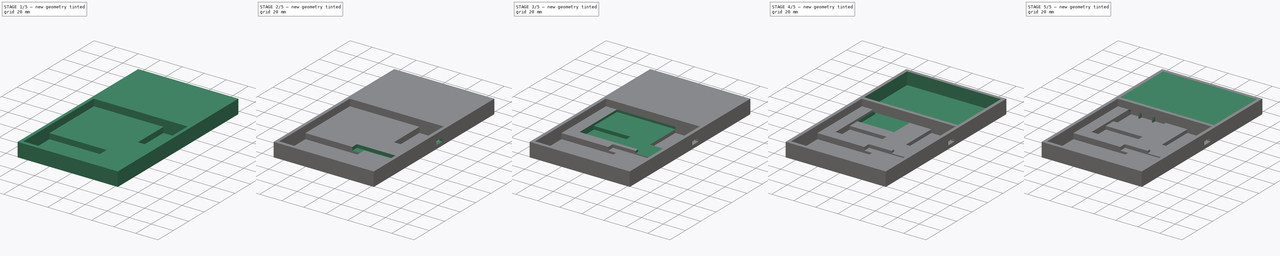
[diagram: build sequence overview — one tinted view per stage of 5, left to right]
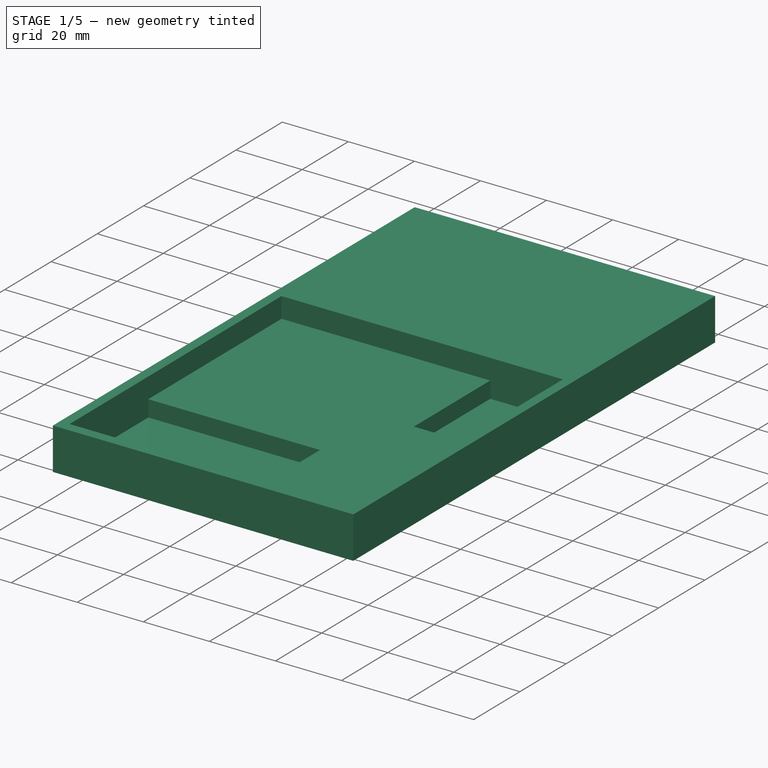
[diagram: stage 1 of 5 — iso view after this stage's code; geometry added in this stage tinted green]
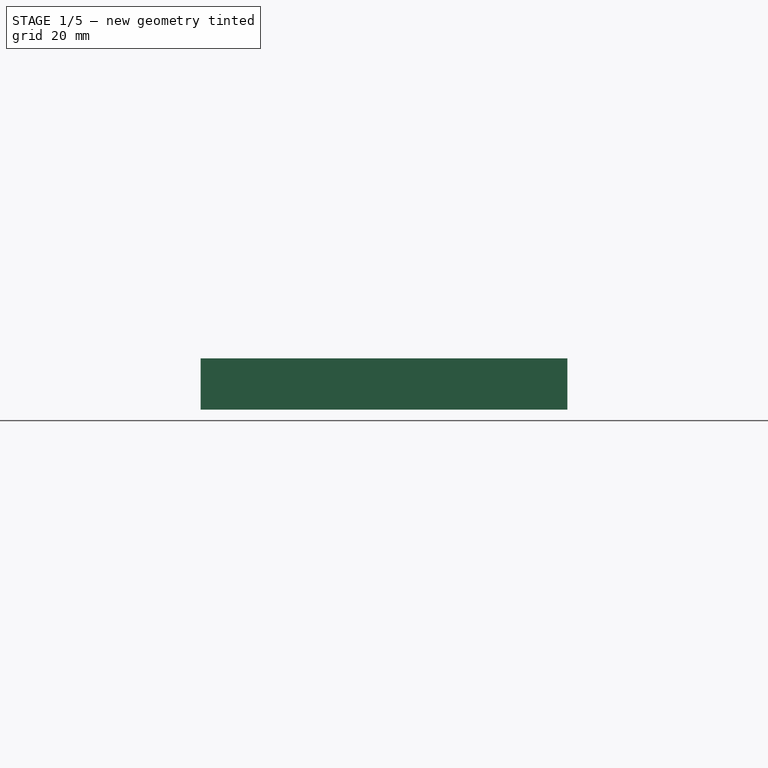
[diagram: stage 1 of 5 — front view after this stage's code; geometry added in this stage tinted green]
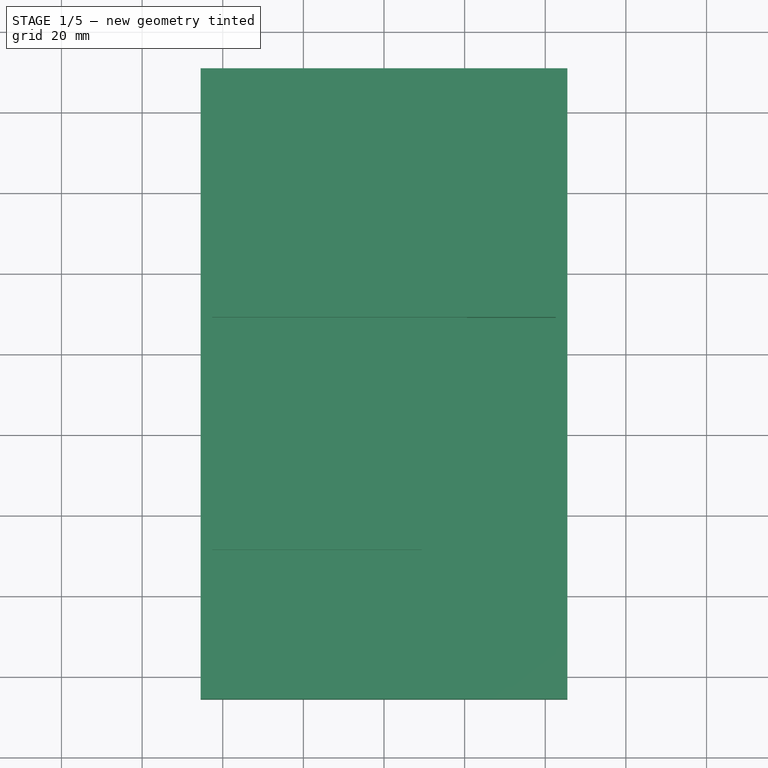
[diagram: stage 1 of 5 — top view after this stage's code; geometry added in this stage tinted green]
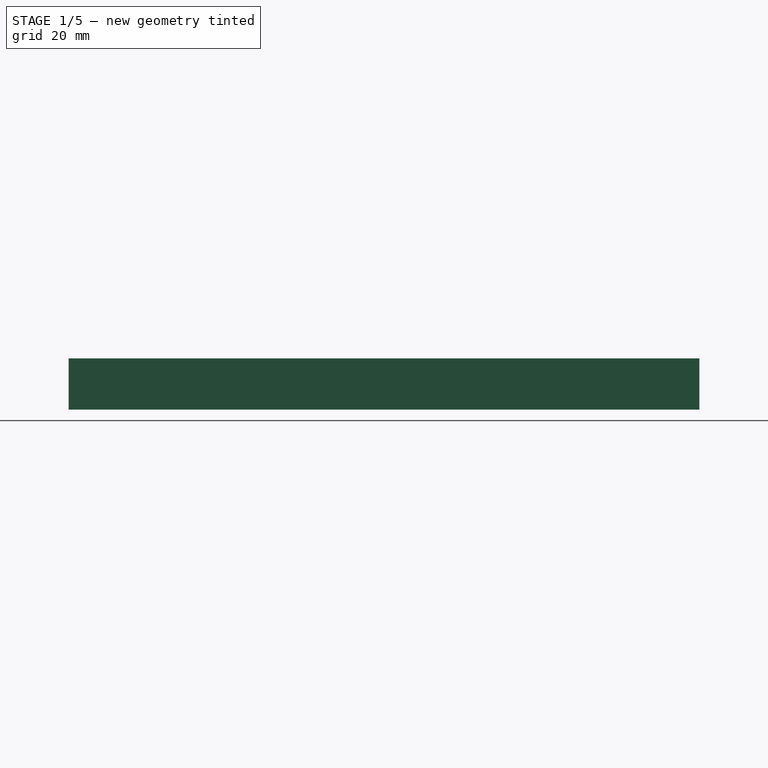
[diagram: stage 1 of 5 — right view after this stage's code; geometry added in this stage tinted green]
FCSTD DOCUMENT  (FreeCAD 0.20R29603 (Git))
Label: newCalcCase1
License: All rights reserved
LicenseURL: http://en.wikipedia.org/wiki/All_rights_reserved
objects: Sketcher::SketchObject×17, PartDesign::Pocket×14, PartDesign::Pad×4, PartDesign::Body×2, Spreadsheet::Sheet×1
note: 55 computed .brp shape members not serialized (recipe doc carries the construction recipe); baked Part::Feature solids carry a one-line shape summary decoded from their .brp

FEATURE [PartDesign::Body] Body  label="Screen"
  Group = -> [Sketch,Pad]
  Origin = -> Origin
  Tip = -> Pad
FEATURE [Spreadsheet::Sheet] Spreadsheet
  cells = A1=screenW; B1(screenW)==85.2mm; A2=screenH; B2(screenH)==55.7mm; A3=caseW; B3(caseW)==90.95999999999999mm; A4=caseH; B4(caseH)==156.45mm; A5=batW; B5(batW)==34mm; A6=batH; B6(batH)==52mm; A7=cBoostW; B7(cBoostW)==22mm; A8=cBoostH; B8(cBoostH)==33mm; A9=cBoostD; B9(cBoostD)==1.67mm; A10=arduinoW; B10(arduinoW)=18.4; A11=arduinoH; B11(arduinoH)==33.4mm; A12=arduinoD; B12(arduinoD)==3mm
FEATURE [Sketcher::SketchObject] Sketch001
  FullyConstrained = true
  MapMode = 5
  Support = -> [XY_Plane001]
  expr: Constraints[10] = Spreadsheet.caseW / 2
  expr: Constraints[11] = Spreadsheet.screenH / 2mm + 3
  expr: Constraints[8] = Spreadsheet.caseW
  expr: Constraints[9] = Spreadsheet.caseH
  sketch-geometry (4):
    g0: LineSegment StartX=-45.48 StartY=30.85 StartZ=0 EndX=45.48 EndY=30.85 EndZ=0
    g1: LineSegment StartX=45.48 StartY=30.85 StartZ=0 EndX=45.48 EndY=-125.6 EndZ=0
    g2: LineSegment StartX=45.48 StartY=-125.6 StartZ=0 EndX=-45.48 EndY=-125.6 EndZ=0
    g3: LineSegment StartX=-45.48 StartY=-125.6 StartZ=0 EndX=-45.48 EndY=30.85 EndZ=0
  constraints (12):
    c: Coincident(g0,g1)
    c: Coincident(g1,g2)
    c: Coincident(g2,g3)
    c: Coincident(g3,g0)
    c: Horizontal(g0)
    c: Horizontal(g2)
    c: Vertical(g1)
    c: Vertical(g3)
    c: DistanceX(g0,g0) = 90.96
    c: DistanceY(g1,g1) = 156.45
    c: DistanceX(g-1,g0) = 45.48
    c: DistanceY(g-1,g0) = 30.85
FEATURE [PartDesign::Pad] Pad001
  Direction = (0,0,1)
  Length = 12.7
  Length2 = 10
  Profile = -> Sketch001
  ReferenceAxis = -> Sketch001 [N_Axis]
  Type = 0
FEATURE [Sketcher::SketchObject] Sketch002
  ExternalGeometry = -> [Pad001]
  FullyConstrained = true
  MapMode = 5
  Placement = pos=(0,0,12.7) rot=(0,0,1;0rad)
  Support = -> [Pad001]
  expr: Constraints[10] = Spreadsheet.screenH / 2mm + 3
  expr: Constraints[8] = Spreadsheet.screenW
  expr: Constraints[9] = Spreadsheet.screenW / 2
  sketch-geometry (4):
    g0: LineSegment StartX=-42.6 StartY=-30.85 StartZ=0 EndX=42.6 EndY=-30.85 EndZ=0
    g1: LineSegment StartX=42.6 StartY=-30.85 StartZ=0 EndX=42.6 EndY=-122.485 EndZ=0
    g2: LineSegment StartX=42.6 StartY=-122.485 StartZ=0 EndX=-42.6 EndY=-122.485 EndZ=0
    g3: LineSegment StartX=-42.6 StartY=-122.485 StartZ=0 EndX=-42.6 EndY=-30.85 EndZ=0
  constraints (12):
    c: Coincident(g0,g1)
    c: Coincident(g1,g2)
    c: Coincident(g2,g3)
    c: Coincident(g3,g0)
    c: Horizontal(g0)
    c: Horizontal(g2)
    c: Vertical(g1)
    c: Vertical(g3)
    c: DistanceX(g0,g0) = 85.2
    c: DistanceX(g-1,g0) = 42.6
    c: DistanceY(g0,g-1) = 30.85
    c: Distance(g-3,g2) = 4.24264
FEATURE [PartDesign::Pocket] Pocket
  BaseFeature = -> Pad001
  Direction = (0,0,-1)
  Length = 6.2
  Length2 = 5
  Profile = -> Sketch002
  ReferenceAxis = -> Sketch002 [N_Axis]
  Type = 0
FEATURE [Sketcher::SketchObject] Sketch003
  ExternalGeometry = -> [Pocket]
  FullyConstrained = true
  MapMode = 5
  Placement = pos=(0,0,6.5) rot=(0,0,1;0rad)
  Support = -> [Pocket]
  expr: Constraints[8] = Spreadsheet.batH
  expr: Constraints[9] = Spreadsheet.batW
  sketch-geometry (4):
    g0: LineSegment StartX=-42.6 StartY=-88.4846 StartZ=0 EndX=9.4 EndY=-88.4846 EndZ=0
    g1: LineSegment StartX=9.4 StartY=-88.4846 StartZ=0 EndX=9.4 EndY=-122.485 EndZ=0
    g2: LineSegment StartX=9.4 StartY=-122.485 StartZ=0 EndX=-42.6 EndY=-122.485 EndZ=0
    g3: LineSegment StartX=-42.6 StartY=-122.485 StartZ=0 EndX=-42.6 EndY=-88.4846 EndZ=0
  constraints (11):
    c: Coincident(g0,g1)
    c: Coincident(g1,g2)
    c: Coincident(g2,g3)
    c: Coincident(g3,g0)
    c: Horizontal(g0)
    c: Horizontal(g2)
    c: Vertical(g1)
    c: Vertical(g3)
    c: DistanceX(g0,g0) = 52
    c: DistanceY(g1,g1) = 34
    c: Coincident(g2,g-3)
FEATURE [PartDesign::Pocket] Pocket001
  BaseFeature = -> Pocket
  Direction = (0,0,-1)
  Length = 5
  Length2 = 5
  Profile = -> Sketch003
  ReferenceAxis = -> Sketch003 [N_Axis]
  Type = 0
FEATURE [Sketcher::SketchObject] Sketch004
  ExternalGeometry = -> [Pocket001]
  FullyConstrained = true
  MapMode = 5
  Placement = pos=(0,0,6.5) rot=(0,0,1;0rad)
  Support = -> [Pocket001]
  expr: Constraints[8] = Spreadsheet.cBoostW
  expr: Constraints[9] = Spreadsheet.cBoostH
  sketch-geometry (4):
    g0: LineSegment StartX=20.6 StartY=-30.85 StartZ=0 EndX=42.6 EndY=-30.85 EndZ=0
    g1: LineSegment StartX=42.6 StartY=-30.85 StartZ=0 EndX=42.6 EndY=-63.85 EndZ=0
    g2: LineSegment StartX=42.6 StartY=-63.85 StartZ=0 EndX=20.6 EndY=-63.85 EndZ=0
    g3: LineSegment StartX=20.6 StartY=-63.85 StartZ=0 EndX=20.6 EndY=-30.85 EndZ=0
  constraints (11):
    c: Coincident(g0,g1)
    c: Coincident(g1,g2)
    c: Coincident(g2,g3)
    c: Coincident(g3,g0)
    c: Horizontal(g0)
    c: Horizontal(g2)
    c: Vertical(g1)
    c: Vertical(g3)
    c: DistanceX(g0,g0) = 22
    c: DistanceY(g3,g3) = 33
    c: Coincident(g0,g-3)
FEATURE [PartDesign::Pocket] Pocket002
  BaseFeature = -> Pocket001
  Direction = (0,0,-1)
  Length = 5
  Length2 = 5
  Profile = -> Sketch004
  ReferenceAxis = -> Sketch004 [N_Axis]
  Type = 0
  expr: Length = 5mm
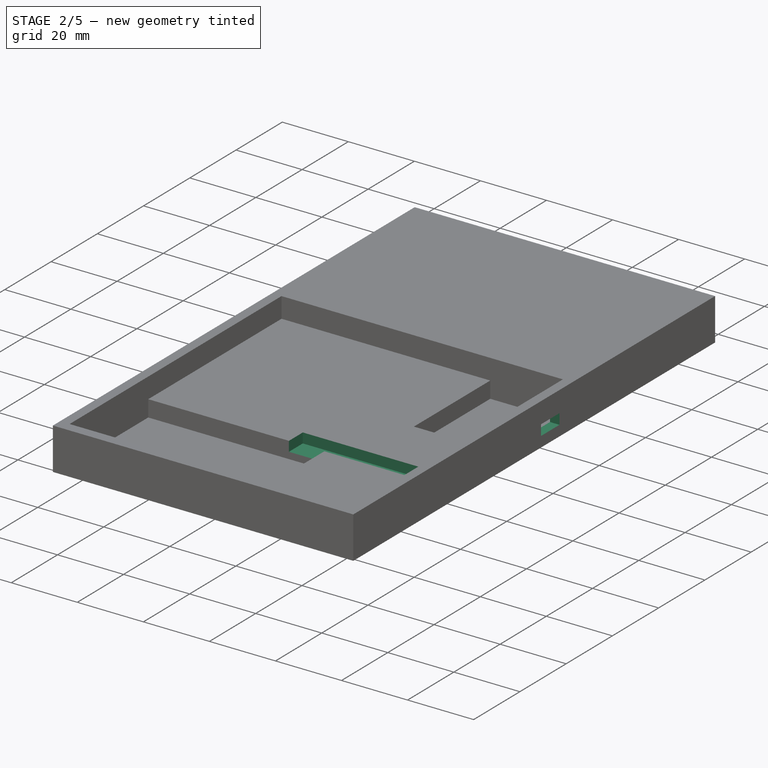
[diagram: stage 2 of 5 — iso view after this stage's code; geometry added in this stage tinted green]
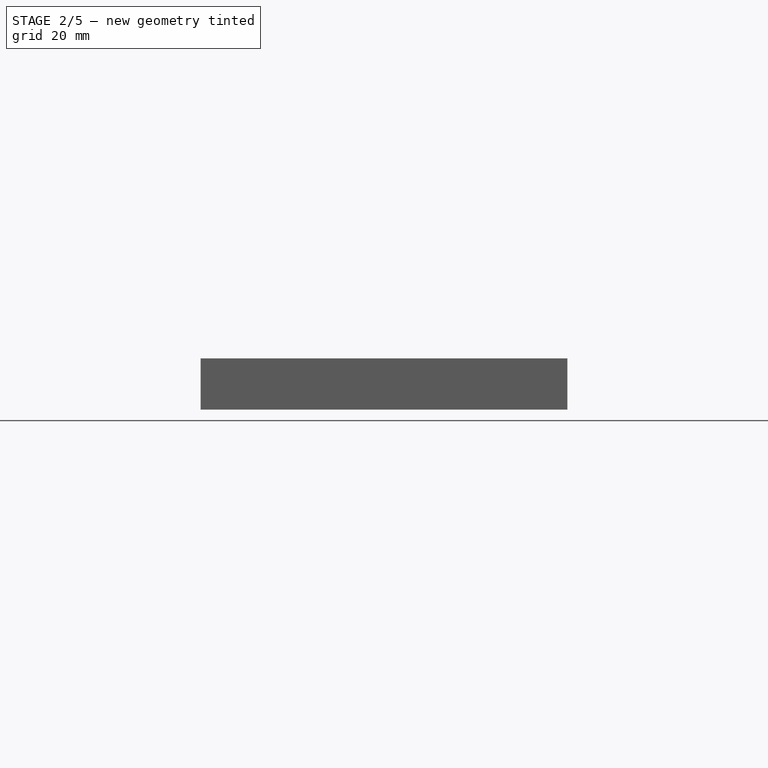
[diagram: stage 2 of 5 — front view after this stage's code; geometry added in this stage tinted green]
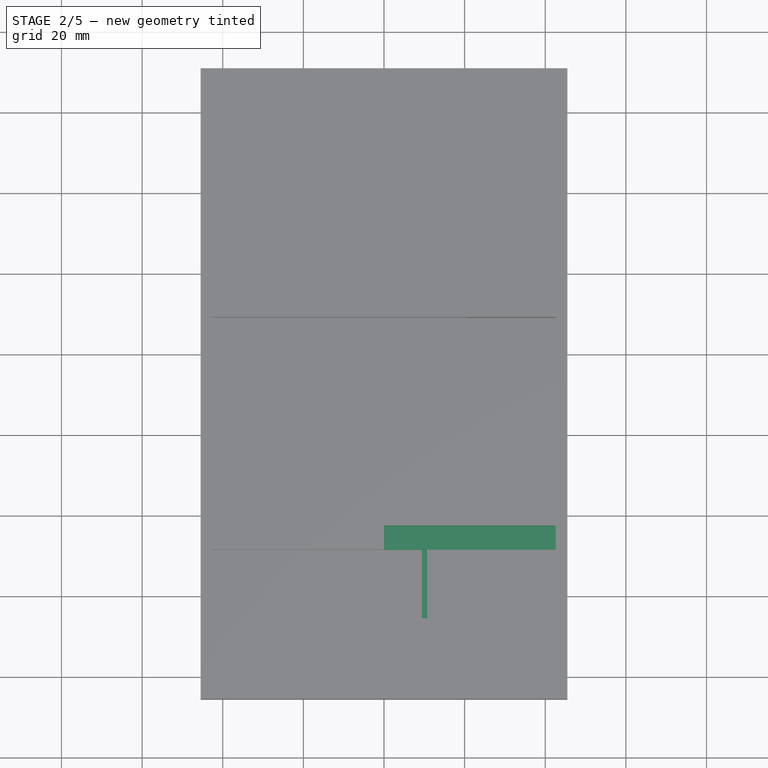
[diagram: stage 2 of 5 — top view after this stage's code; geometry added in this stage tinted green]
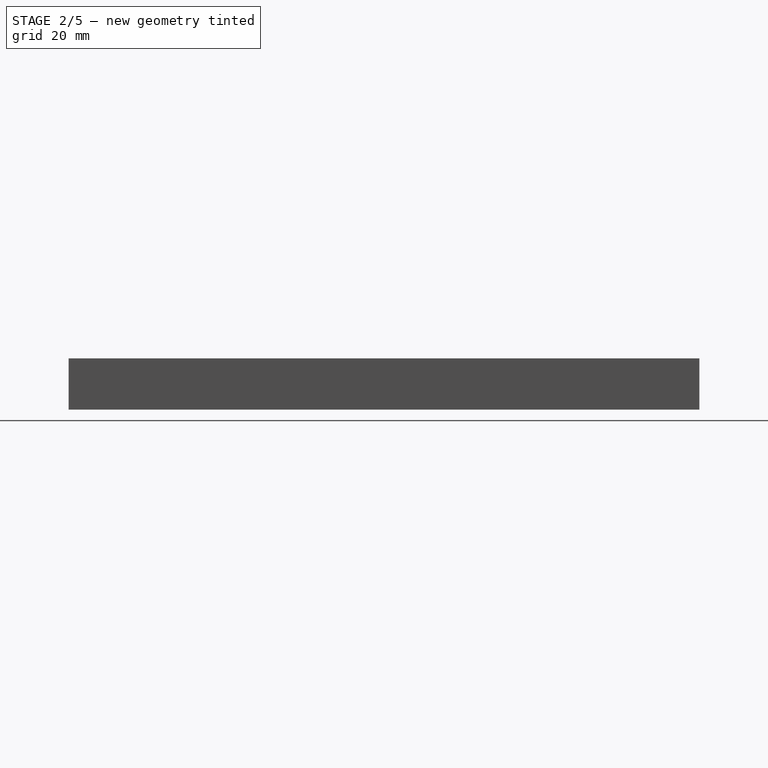
[diagram: stage 2 of 5 — right view after this stage's code; geometry added in this stage tinted green]
FEATURE [Sketcher::SketchObject] Sketch005
  ExternalGeometry = -> [Pocket002]
  FullyConstrained = true
  MapMode = 5
  Placement = pos=(42.6,0,0) rot=(0.57735,-0.57735,-0.57735;2.0944rad)
  Support = -> [Pocket002]
  expr: Constraints[11] = Spreadsheet.cBoostD
  sketch-geometry (4):
    g0: LineSegment StartX=36.45 StartY=6.37 StartZ=0 EndX=44.45 EndY=6.37 EndZ=0
    g1: LineSegment StartX=44.45 StartY=6.37 StartZ=0 EndX=44.45 EndY=3.17 EndZ=0
    g2: LineSegment StartX=44.45 StartY=3.17 StartZ=0 EndX=36.45 EndY=3.17 EndZ=0
    g3: LineSegment StartX=36.45 StartY=3.17 StartZ=0 EndX=36.45 EndY=6.37 EndZ=0
  constraints (12):
    c: Coincident(g0,g1)
    c: Coincident(g1,g2)
    c: Coincident(g2,g3)
    c: Coincident(g3,g0)
    c: Horizontal(g0)
    c: Horizontal(g2)
    c: Vertical(g1)
    c: Vertical(g3)
    c: DistanceX(g-3,g0) = 5.6
    c: DistanceY(g1,g1) = 3.2
    c: DistanceX(g0,g0) = 8
    c: DistanceY(g-4,g2) = 1.67
FEATURE [PartDesign::Pocket] Pocket003
  BaseFeature = -> Pocket002
  Direction = (1,0,0)
  Length = 5
  Length2 = 5
  Profile = -> Sketch005
  ReferenceAxis = -> Sketch005 [N_Axis]
  Type = 2
FEATURE [Sketcher::SketchObject] Sketch006
  ExternalGeometry = -> [Pocket003]
  FullyConstrained = true
  MapMode = 5
  Placement = pos=(9.4,0,0) rot=(0.57735,-0.57735,-0.57735;2.0944rad)
  Support = -> [Pocket003]
  expr: Constraints[9] = Spreadsheet.batW / 2
  sketch-geometry (4):
    g0: LineSegment StartX=88.4846 StartY=6.5 StartZ=0 EndX=105.485 EndY=6.5 EndZ=0
    g1: LineSegment StartX=105.485 StartY=6.5 StartZ=0 EndX=105.485 EndY=1.5 EndZ=0
    g2: LineSegment StartX=105.485 StartY=1.5 StartZ=0 EndX=88.4846 EndY=1.5 EndZ=0
    g3: LineSegment StartX=88.4846 StartY=1.5 StartZ=0 EndX=88.4846 EndY=6.5 EndZ=0
  constraints (11):
    c: Coincident(g0,g1)
    c: Coincident(g1,g2)
    c: Coincident(g2,g3)
    c: Coincident(g3,g0)
    c: Horizontal(g0)
    c: Horizontal(g2)
    c: Vertical(g1)
    c: Vertical(g3)
    c: Coincident(g0,g-3)
    c: DistanceX(g2,g2) = 17
    c: DistanceY(g1,g1) = 5
FEATURE [PartDesign::Pocket] Pocket004
  BaseFeature = -> Pocket003
  Direction = (1,0,0)
  Length = 1.3
  Length2 = 5
  Profile = -> Sketch006
  ReferenceAxis = -> Sketch006 [N_Axis]
  Type = 0
FEATURE [Sketcher::SketchObject] Sketch007
  ExternalGeometry = -> [Pocket004]
  FullyConstrained = true
  MapMode = 5
  Placement = pos=(0,0,6.5) rot=(0,0,1;0rad)
  Support = -> [Pocket004]
  sketch-geometry (4):
    g0: LineSegment StartX=0 StartY=-82.4846 StartZ=0 EndX=42.6 EndY=-82.4846 EndZ=0
    g1: LineSegment StartX=42.6 StartY=-82.4846 StartZ=0 EndX=42.6 EndY=-88.4846 EndZ=0
    g2: LineSegment StartX=42.6 StartY=-88.4846 StartZ=0 EndX=0 EndY=-88.4846 EndZ=0
    g3: LineSegment StartX=0 StartY=-88.4846 StartZ=0 EndX=0 EndY=-82.4846 EndZ=0
  constraints (12):
    c: Coincident(g0,g1)
    c: Coincident(g1,g2)
    c: Coincident(g2,g3)
    c: Coincident(g3,g0)
    c: Horizontal(g0)
    c: Horizontal(g2)
    c: Vertical(g1)
    c: Vertical(g3)
    c: PointOnObject(g0,g-2)
    c: PointOnObject(g2,g-3)
    c: DistanceY(g3,g3) = 6
    c: PointOnObject(g0,g-4)
FEATURE [PartDesign::Pocket] Pocket005
  BaseFeature = -> Pocket004
  Direction = (0,0,-1)
  Length = 3
  Length2 = 5
  Profile = -> Sketch007
  ReferenceAxis = -> Sketch007 [N_Axis]
  Type = 0
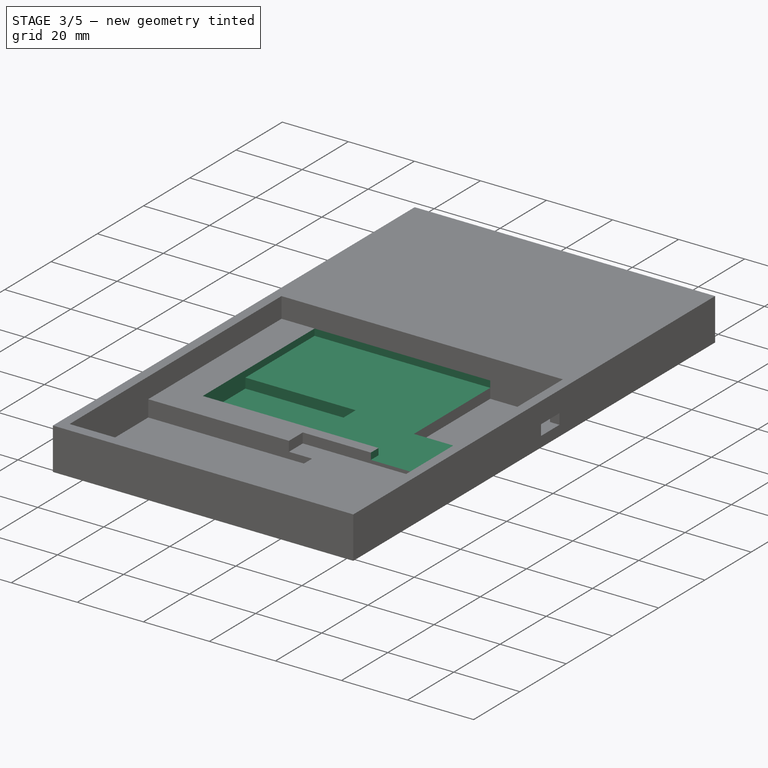
[diagram: stage 3 of 5 — iso view after this stage's code; geometry added in this stage tinted green]
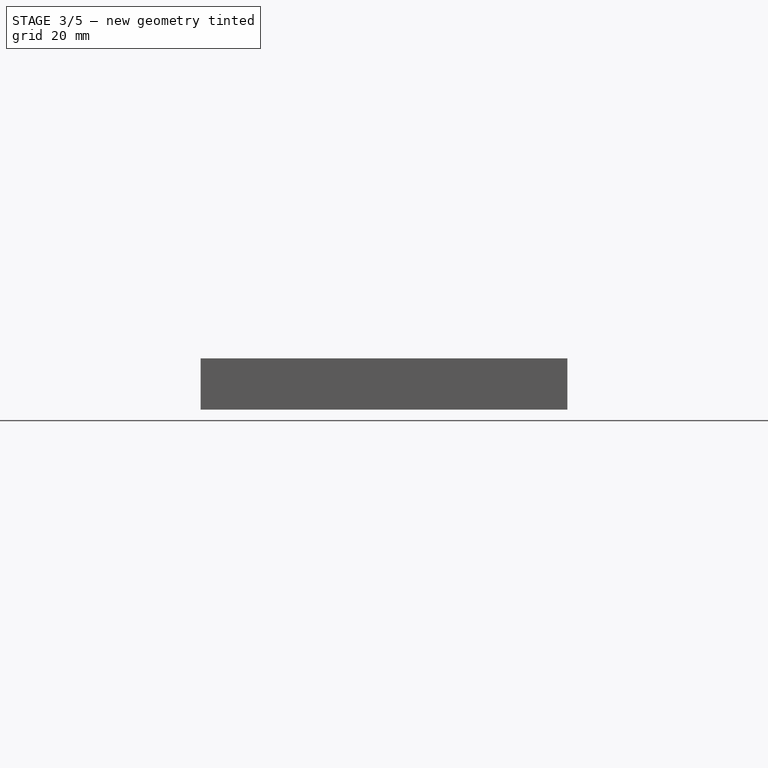
[diagram: stage 3 of 5 — front view after this stage's code; geometry added in this stage tinted green]
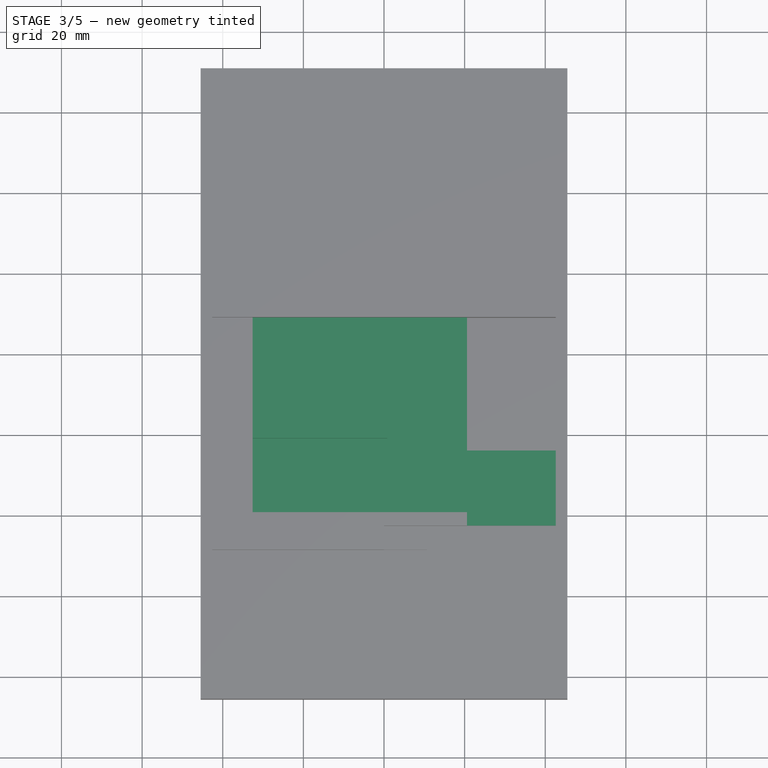
[diagram: stage 3 of 5 — top view after this stage's code; geometry added in this stage tinted green]
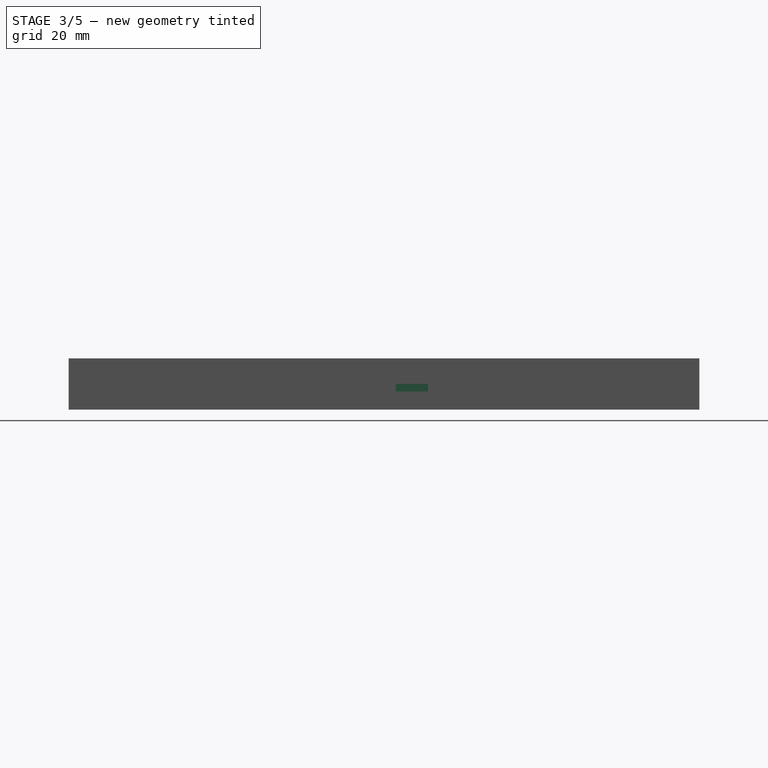
[diagram: stage 3 of 5 — right view after this stage's code; geometry added in this stage tinted green]
FEATURE [Sketcher::SketchObject] Sketch008
  ExternalGeometry = -> [Pocket005]
  FullyConstrained = true
  MapMode = 5
  Placement = pos=(0,0,6.5) rot=(0,0,1;0rad)
  Support = -> [Pocket005]
  sketch-geometry (4):
    g0: LineSegment StartX=42.6 StartY=-63.85 StartZ=0 EndX=20.6 EndY=-63.85 EndZ=0
    g1: LineSegment StartX=20.6 StartY=-63.85 StartZ=0 EndX=20.6 EndY=-82.4846 EndZ=0
    g2: LineSegment StartX=20.6 StartY=-82.4846 StartZ=0 EndX=42.6 EndY=-82.4846 EndZ=0
    g3: LineSegment StartX=42.6 StartY=-82.4846 StartZ=0 EndX=42.6 EndY=-63.85 EndZ=0
  constraints (10):
    c: Coincident(g0,g1)
    c: Coincident(g1,g2)
    c: Coincident(g2,g3)
    c: Coincident(g3,g0)
    c: Horizontal(g2)
    c: Vertical(g1)
    c: Vertical(g3)
    c: Coincident(g0,g-4)
    c: PointOnObject(g1,g-3)
    c: Coincident(g0,g-4)
FEATURE [PartDesign::Pocket] Pocket006
  BaseFeature = -> Pocket005
  Direction = (0,0,-1)
  Length = 2
  Length2 = 5
  Profile = -> Sketch008
  ReferenceAxis = -> Sketch008 [N_Axis]
  Type = 0
FEATURE [Sketcher::SketchObject] Sketch009
  FullyConstrained = true
  MapMode = 5
  Placement = pos=(0,0,6.5) rot=(0,0,1;0rad)
  Support = -> [Pocket006]
FEATURE [Sketcher::SketchObject] Sketch010
  ExternalGeometry = -> [Pocket006]
  FullyConstrained = false
  MapMode = 5
  Placement = pos=(0,0,6.5) rot=(0,0,1;0rad)
  Support = -> [Pocket006]
  expr: Constraints[8] = Spreadsheet.arduinoH
  expr: Constraints[9] = Spreadsheet.arduinoW
  sketch-geometry (4):
    g0: LineSegment StartX=-32.6 StartY=-60.7679 StartZ=0 EndX=0.8 EndY=-60.7679 EndZ=0
    g1: LineSegment StartX=0.8 StartY=-60.7679 StartZ=0 EndX=0.8 EndY=-79.1679 EndZ=0
    g2: LineSegment StartX=0.8 StartY=-79.1679 StartZ=0 EndX=-32.6 EndY=-79.1679 EndZ=0
    g3: LineSegment StartX=-32.6 StartY=-79.1679 StartZ=0 EndX=-32.6 EndY=-60.7679 EndZ=0
  constraints (11):
    c: Coincident(g0,g1)
    c: Coincident(g1,g2)
    c: Coincident(g2,g3)
    c: Coincident(g3,g0)
    c: Horizontal(g0)
    c: Horizontal(g2)
    c: Vertical(g1)
    c: Vertical(g3)
    c: DistanceX(g0,g0) = 33.4
    c: DistanceY(g1,g1) = 18.4
    c: DistanceX(g-3,g0) = 10
FEATURE [PartDesign::Pocket] Pocket007
  BaseFeature = -> Pocket006
  Direction = (0,0,-1)
  Length = 5
  Length2 = 5
  Profile = -> Sketch010
  ReferenceAxis = -> Sketch010 [N_Axis]
  Type = 0
FEATURE [Sketcher::SketchObject] Sketch011
  ExternalGeometry = -> [Pocket007]
  FullyConstrained = true
  MapMode = 5
  Placement = pos=(0,0,6.5) rot=(0,0,1;0rad)
  Support = -> [Pocket007]
  sketch-geometry (4):
    g0: LineSegment StartX=20.6 StartY=-30.85 StartZ=0 EndX=0.8 EndY=-30.85 EndZ=0
    g1: LineSegment StartX=0.8 StartY=-30.85 StartZ=0 EndX=0.8 EndY=-79.1679 EndZ=0
    g2: LineSegment StartX=0.8 StartY=-79.1679 StartZ=0 EndX=20.6 EndY=-79.1679 EndZ=0
    g3: LineSegment StartX=20.6 StartY=-79.1679 StartZ=0 EndX=20.6 EndY=-30.85 EndZ=0
  constraints (10):
    c: Coincident(g0,g1)
    c: Coincident(g1,g2)
    c: Coincident(g2,g3)
    c: Coincident(g3,g0)
    c: Horizontal(g0)
    c: Horizontal(g2)
    c: Vertical(g1)
    c: Vertical(g3)
    c: Coincident(g0,g-4)
    c: Coincident(g1,g-3)
FEATURE [PartDesign::Pocket] Pocket008
  BaseFeature = -> Pocket007
  Direction = (0,0,-1)
  Length = 2
  Length2 = 5
  Profile = -> Sketch011
  ReferenceAxis = -> Sketch011 [N_Axis]
  Type = 0
FEATURE [Sketcher::SketchObject] Sketch012
  ExternalGeometry = -> [Pocket008]
  FullyConstrained = true
  MapMode = 5
  Placement = pos=(0,0,6.5) rot=(0,0,1;0rad)
  Support = -> [Pocket008]
  sketch-geometry (4):
    g0: LineSegment StartX=-32.6 StartY=-60.7679 StartZ=0 EndX=0.8 EndY=-60.7679 EndZ=0
    g1: LineSegment StartX=0.8 StartY=-60.7679 StartZ=0 EndX=0.8 EndY=-30.85 EndZ=0
    g2: LineSegment StartX=0.8 StartY=-30.85 StartZ=0 EndX=-32.6 EndY=-30.85 EndZ=0
    g3: LineSegment StartX=-32.6 StartY=-30.85 StartZ=0 EndX=-32.6 EndY=-60.7679 EndZ=0
  constraints (10):
    c: Coincident(g0,g1)
    c: Coincident(g1,g2)
    c: Coincident(g2,g3)
    c: Coincident(g3,g0)
    c: Horizontal(g2)
    c: Vertical(g1)
    c: Vertical(g3)
    c: Coincident(g0,g-3)
    c: PointOnObject(g1,g-4)
    c: Coincident(g0,g-3)
FEATURE [PartDesign::Pocket] Pocket009
  BaseFeature = -> Pocket008
  Direction = (0,0,-1)
  Length = 2
  Length2 = 5
  Profile = -> Sketch012
  ReferenceAxis = -> Sketch012 [N_Axis]
  Type = 0
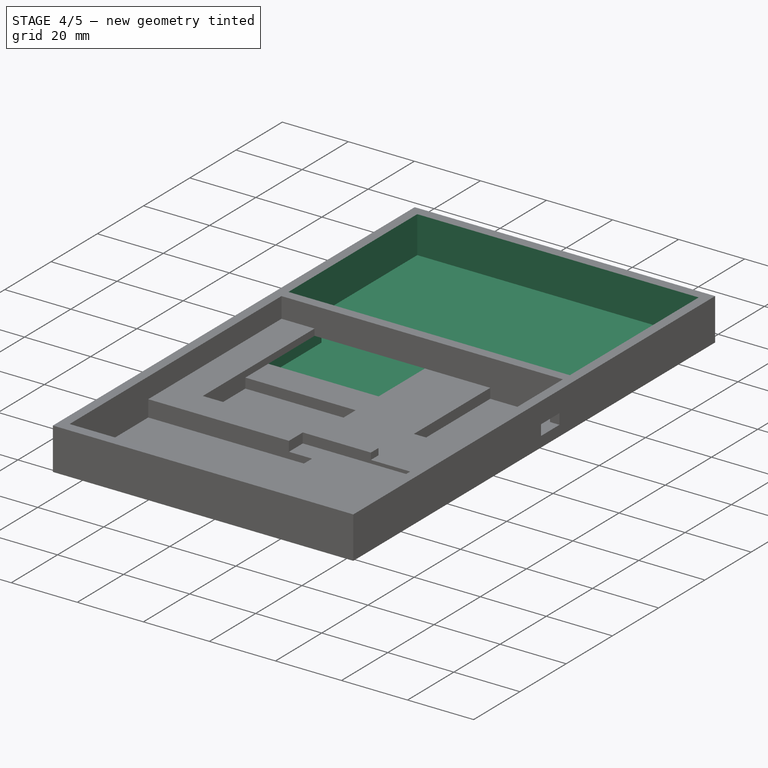
[diagram: stage 4 of 5 — iso view after this stage's code; geometry added in this stage tinted green]
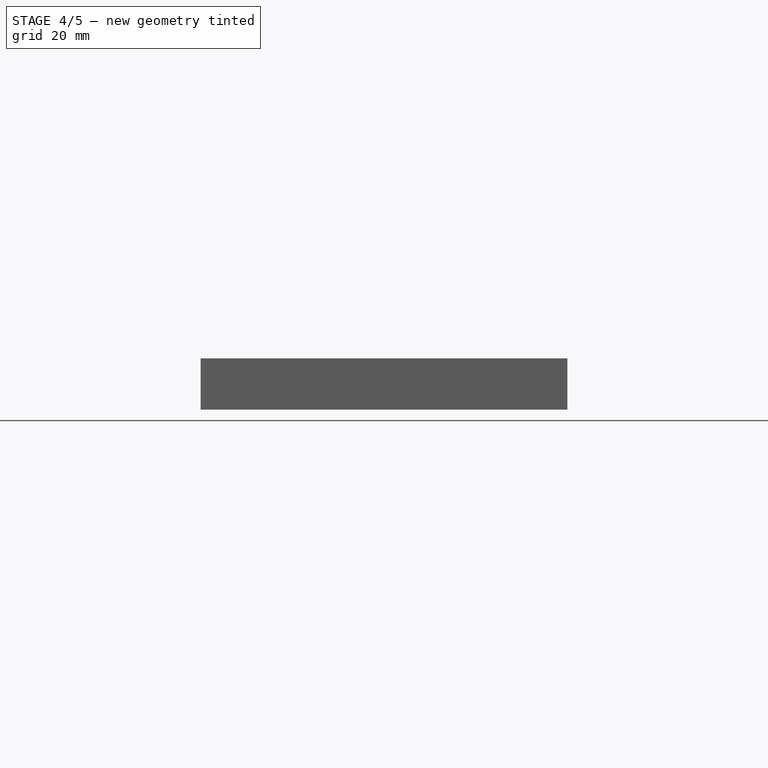
[diagram: stage 4 of 5 — front view after this stage's code; geometry added in this stage tinted green]
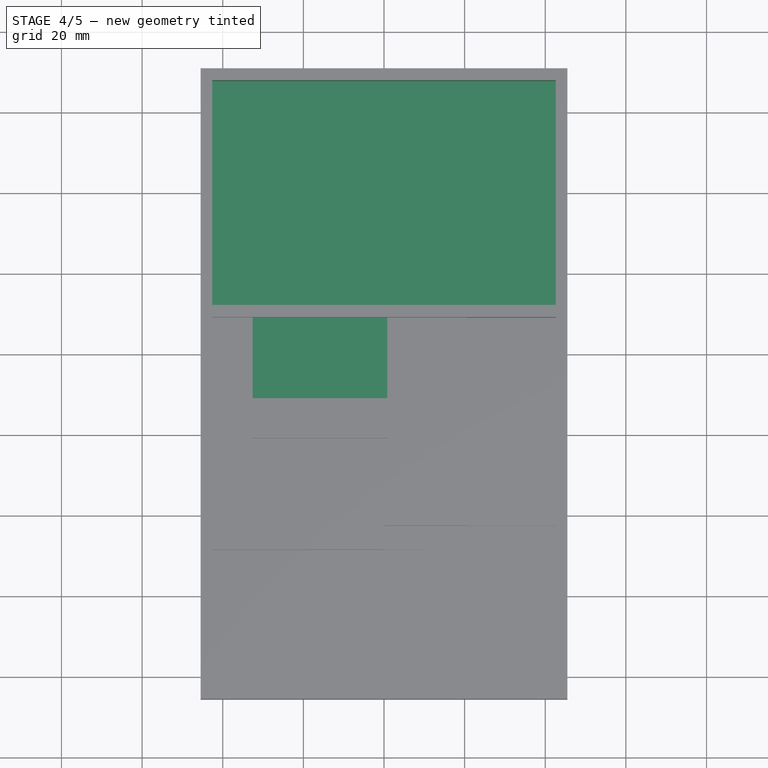
[diagram: stage 4 of 5 — top view after this stage's code; geometry added in this stage tinted green]
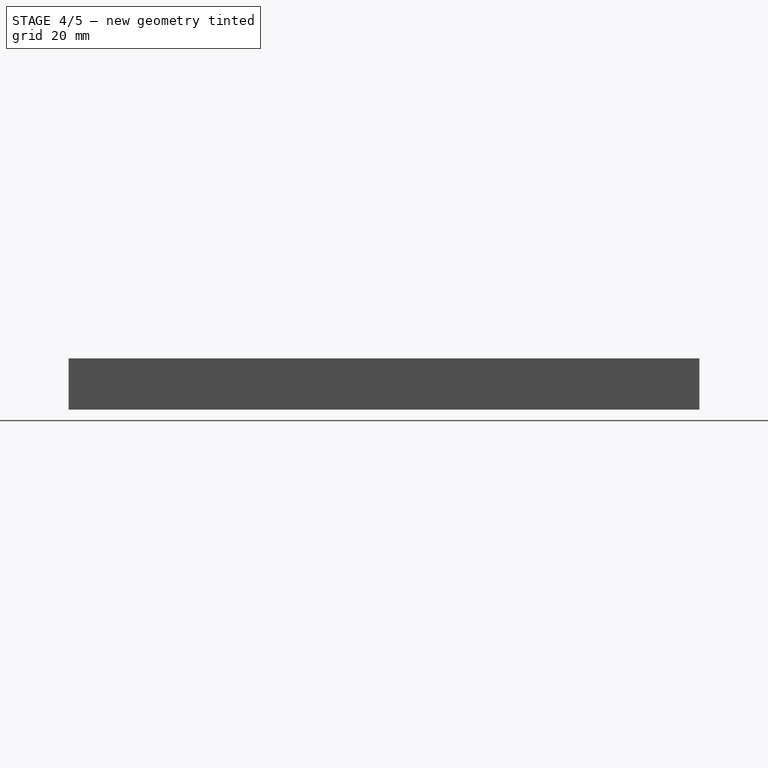
[diagram: stage 4 of 5 — right view after this stage's code; geometry added in this stage tinted green]
FEATURE [Sketcher::SketchObject] Sketch013
  ExternalGeometry = -> [Pocket009]
  FullyConstrained = true
  MapMode = 5
  Placement = pos=(0,0,4.5) rot=(0,0,1;0rad)
  Support = -> [Pocket009]
  sketch-geometry (4):
    g0: LineSegment StartX=-32.6 StartY=-30.85 StartZ=0 EndX=0.8 EndY=-30.85 EndZ=0
    g1: LineSegment StartX=0.8 StartY=-30.85 StartZ=0 EndX=0.8 EndY=-50.85 EndZ=0
    g2: LineSegment StartX=0.8 StartY=-50.85 StartZ=0 EndX=-32.6 EndY=-50.85 EndZ=0
    g3: LineSegment StartX=-32.6 StartY=-50.85 StartZ=0 EndX=-32.6 EndY=-30.85 EndZ=0
  constraints (11):
    c: Coincident(g0,g1)
    c: Coincident(g1,g2)
    c: Coincident(g2,g3)
    c: Coincident(g3,g0)
    c: Horizontal(g0)
    c: Horizontal(g2)
    c: Vertical(g1)
    c: Vertical(g3)
    c: Coincident(g0,g-3)
    c: PointOnObject(g1,g-5)
    c: DistanceY(g1,g1) = 20
FEATURE [PartDesign::Pocket] Pocket010
  BaseFeature = -> Pocket009
  Direction = (0,0,-1)
  Length = 3
  Length2 = 5
  Profile = -> Sketch013
  ReferenceAxis = -> Sketch013 [N_Axis]
  Type = 0
FEATURE [Sketcher::SketchObject] Sketch014
  ExternalGeometry = -> [Pocket010]
  FullyConstrained = true
  MapMode = 5
  Placement = pos=(0,0,12.7) rot=(0,0,1;0rad)
  Support = -> [Pocket010]
  expr: Constraints[10] = Spreadsheet.screenW / 2
  expr: Constraints[11] = Spreadsheet.screenH / 2
  expr: Constraints[8] = Spreadsheet.screenW
  expr: Constraints[9] = Spreadsheet.screenH
  sketch-geometry (4):
    g0: LineSegment StartX=-42.6 StartY=27.85 StartZ=0 EndX=42.6 EndY=27.85 EndZ=0
    g1: LineSegment StartX=42.6 StartY=27.85 StartZ=0 EndX=42.6 EndY=-27.85 EndZ=0
    g2: LineSegment StartX=42.6 StartY=-27.85 StartZ=0 EndX=-42.6 EndY=-27.85 EndZ=0
    g3: LineSegment StartX=-42.6 StartY=-27.85 StartZ=0 EndX=-42.6 EndY=27.85 EndZ=0
  constraints (12):
    c: Coincident(g0,g1)
    c: Coincident(g1,g2)
    c: Coincident(g2,g3)
    c: Coincident(g3,g0)
    c: Horizontal(g0)
    c: Horizontal(g2)
    c: Vertical(g1)
    c: Vertical(g3)
    c: DistanceX(g0,g0) = 85.2
    c: DistanceY(g1,g1) = 55.7
    c: DistanceX(g-1,g0) = 42.6
    c: DistanceY(g-1,g0) = 27.85
FEATURE [PartDesign::Pocket] Pocket011
  BaseFeature = -> Pocket010
  Direction = (0,0,-1)
  Length = 11.2
  Length2 = 5
  Profile = -> Sketch014
  ReferenceAxis = -> Sketch014 [N_Axis]
  Type = 0
FEATURE [PartDesign::Pocket] Pocket012
  BaseFeature = -> Pocket011
  Direction = (0,1,0)
  Length = 5
  Length2 = 5
  Profile = -> Pocket011 [Face45]
  Type = 2
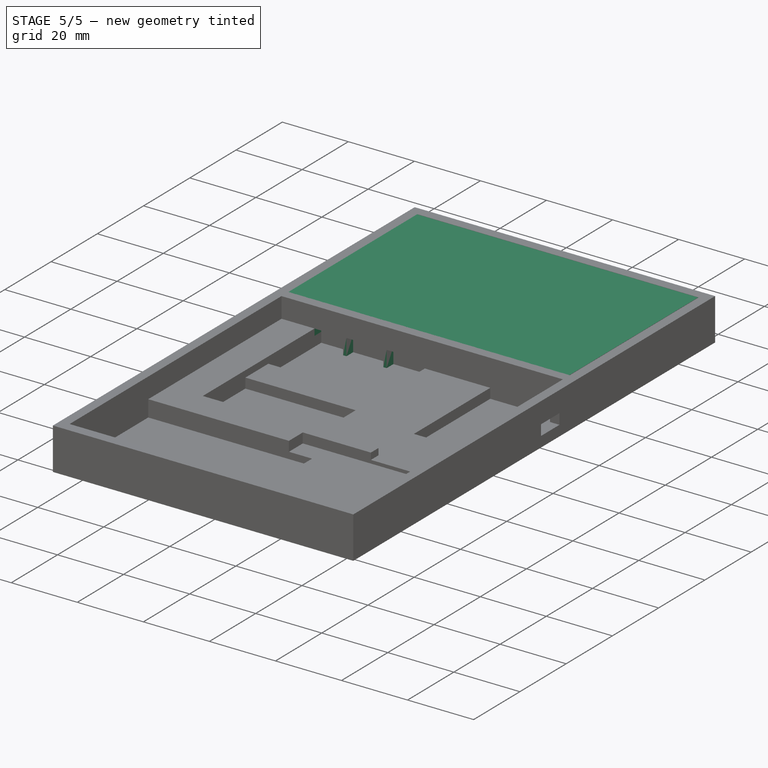
[diagram: stage 5 of 5 — iso view after this stage's code; geometry added in this stage tinted green]
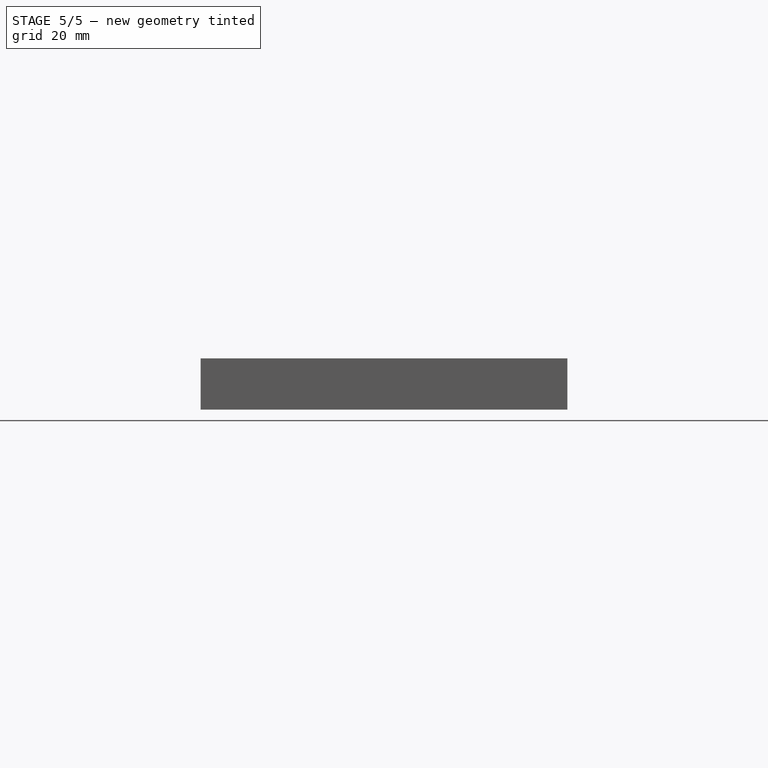
[diagram: stage 5 of 5 — front view after this stage's code; geometry added in this stage tinted green]
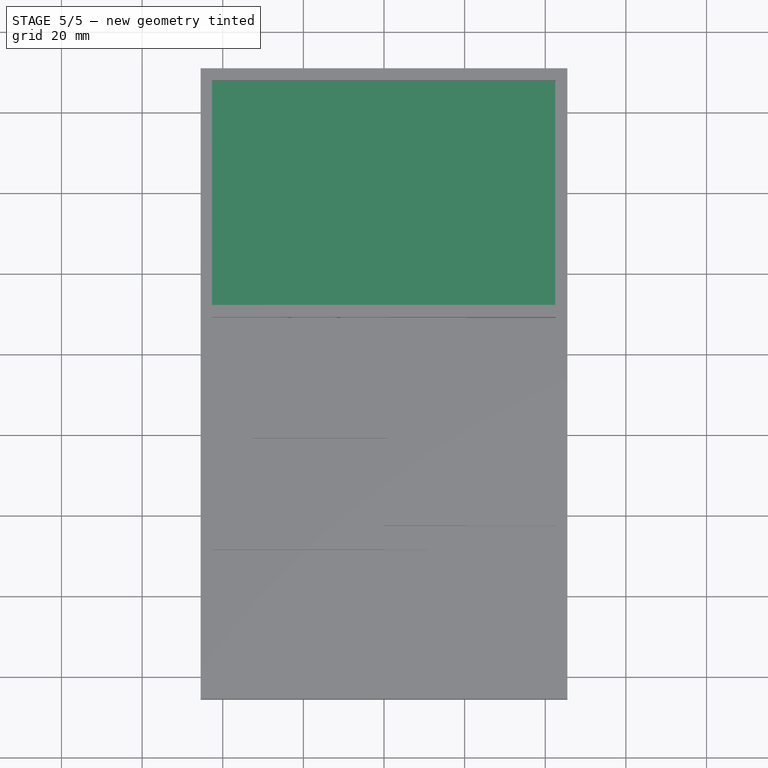
[diagram: stage 5 of 5 — top view after this stage's code; geometry added in this stage tinted green]
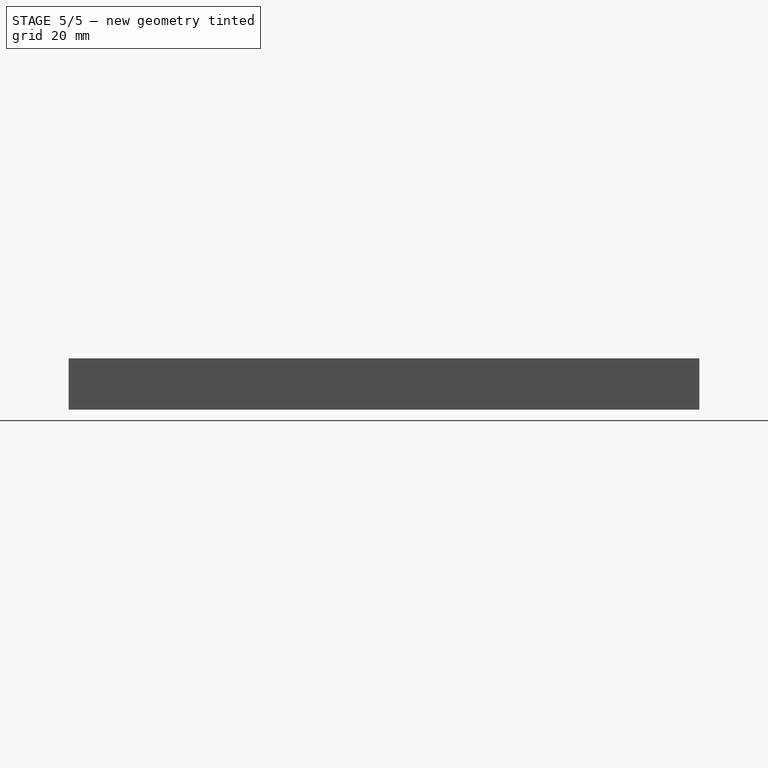
[diagram: stage 5 of 5 — right view after this stage's code; geometry added in this stage tinted green]
FEATURE [Sketcher::SketchObject] Sketch
  FullyConstrained = true
  MapMode = 5
  Support = -> [XY_Plane]
  expr: Constraints[8] = Spreadsheet.screenW
  expr: Constraints[9] = Spreadsheet.screenH
  sketch-geometry (4):
    g0: LineSegment StartX=-42.72 StartY=27.75 StartZ=0 EndX=42.48 EndY=27.75 EndZ=0
    g1: LineSegment StartX=42.48 StartY=27.75 StartZ=0 EndX=42.48 EndY=-27.95 EndZ=0
    g2: LineSegment StartX=42.48 StartY=-27.95 StartZ=0 EndX=-42.72 EndY=-27.95 EndZ=0
    g3: LineSegment StartX=-42.72 StartY=-27.95 StartZ=0 EndX=-42.72 EndY=27.75 EndZ=0
  constraints (12):
    c: Coincident(g0,g1)
    c: Coincident(g1,g2)
    c: Coincident(g2,g3)
    c: Coincident(g3,g0)
    c: Horizontal(g0)
    c: Horizontal(g2)
    c: Vertical(g1)
    c: Vertical(g3)
    c: DistanceX(g0,g0) = 85.2
    c: DistanceY(g1,g1) = 55.7
    c: DistanceX(g-1,g0) = 42.48
    c: DistanceY(g-1,g0) = 27.75
FEATURE [PartDesign::Pad] Pad
  Direction = (0,0,1)
  Length = 12.7
  Length2 = 10
  Profile = -> Sketch
  ReferenceAxis = -> Sketch [N_Axis]
  Type = 0
FEATURE [PartDesign::Pocket] Pocket013
  BaseFeature = -> Pocket012
  Direction = (0,1,0)
  Length = 5
  Length2 = 5
  Profile = -> Pocket012 [Face23]
  Type = 2
FEATURE [Sketcher::SketchObject] Sketch015
  ExternalGeometry = -> [Pocket013]
  FullyConstrained = false
  MapMode = 5
  Placement = pos=(0,0,1.5) rot=(0,0,1;0rad)
  Support = -> [Pocket013]
  sketch-geometry (4):
    g0: LineSegment StartX=-23.9452 StartY=-27.85 StartZ=0 EndX=-22.9452 EndY=-27.85 EndZ=0
    g1: LineSegment StartX=-22.9452 StartY=-27.85 StartZ=0 EndX=-22.9452 EndY=-30.85 EndZ=0
    g2: LineSegment StartX=-22.9452 StartY=-30.85 StartZ=0 EndX=-23.9452 EndY=-30.85 EndZ=0
    g3: LineSegment StartX=-23.9452 StartY=-30.85 StartZ=0 EndX=-23.9452 EndY=-27.85 EndZ=0
  constraints (11):
    c: Coincident(g0,g1)
    c: Coincident(g1,g2)
    c: Coincident(g2,g3)
    c: Coincident(g3,g0)
    c: Horizontal(g0)
    c: Horizontal(g2)
    c: Vertical(g1)
    c: Vertical(g3)
    c: PointOnObject(g0,g-3)
    c: PointOnObject(g1,g-4)
    c: DistanceX(g0,g0) = 1
FEATURE [Sketcher::SketchObject] Sketch016
  ExternalGeometry = -> [Pocket013]
  FullyConstrained = false
  MapMode = 5
  Placement = pos=(0,0,1.5) rot=(0,0,1;0rad)
  Support = -> [Pocket013]
  sketch-geometry (4):
    g0: LineSegment StartX=-11.7686 StartY=-27.85 StartZ=0 EndX=-10.7686 EndY=-27.85 EndZ=0
    g1: LineSegment StartX=-10.7686 StartY=-27.85 StartZ=0 EndX=-10.7686 EndY=-30.85 EndZ=0
    g2: LineSegment StartX=-10.7686 StartY=-30.85 StartZ=0 EndX=-11.7686 EndY=-30.85 EndZ=0
    g3: LineSegment StartX=-11.7686 StartY=-30.85 StartZ=0 EndX=-11.7686 EndY=-27.85 EndZ=0
  constraints (11):
    c: Coincident(g0,g1)
    c: Coincident(g1,g2)
    c: Coincident(g2,g3)
    c: Coincident(g3,g0)
    c: Horizontal(g0)
    c: Horizontal(g2)
    c: Vertical(g1)
    c: Vertical(g3)
    c: PointOnObject(g0,g-3)
    c: PointOnObject(g1,g-4)
    c: DistanceX(g0,g0) = 1
FEATURE [PartDesign::Pad] Pad002
  BaseFeature = -> Pocket013
  Direction = (0,0,1)
  Length = 5
  Length2 = 10
  Profile = -> Sketch016
  ReferenceAxis = -> Sketch016 [N_Axis]
  Type = 0
FEATURE [PartDesign::Pad] Pad003
  BaseFeature = -> Pad002
  Direction = (0,0,1)
  Length = 5
  Length2 = 10
  Profile = -> Sketch015
  ReferenceAxis = -> Sketch015 [N_Axis]
  Type = 0
FEATURE [PartDesign::Body] Body001  label="Case"
  Group = -> [Sketch001,Pad001,Sketch002,Pocket,Sketch003,Pocket001,Sketch004,Pocket002,Sketch005,Pocket003,Sketch006,Pocket004,Sketch007,Pocket005,Sketch008,Pocket006,Sketch009,Sketch010,Pocket007,Sketch011,Pocket008,Sketch012,Pocket009,Sketch013,Pocket010,Sketch014,Pocket011,Pocket012,Pocket013,Sketch015,Sketch016,Pad002,Pad003]
  Origin = -> Origin001
  Tip = -> Pad003
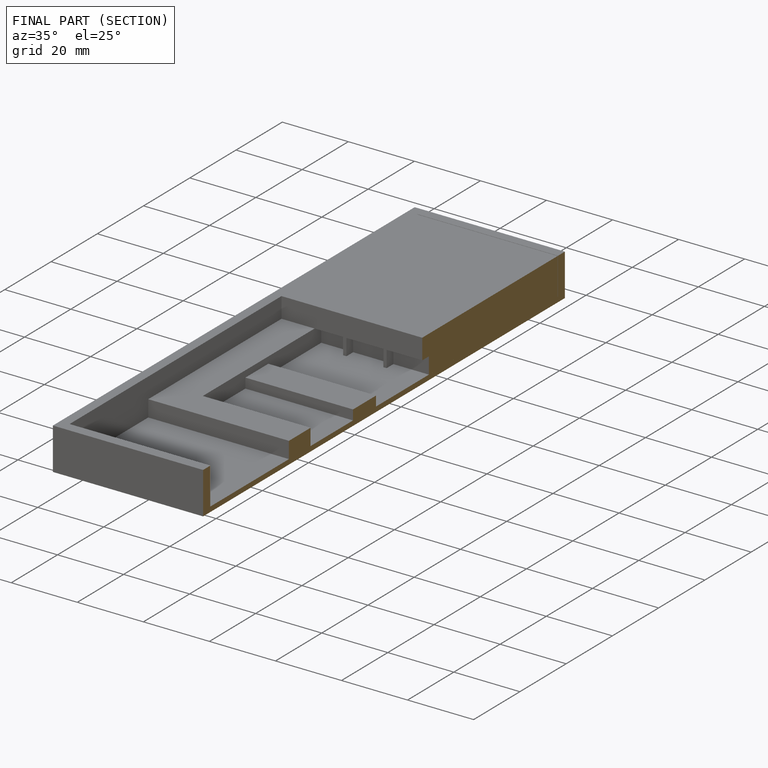
[diagram: finished part — half-section view (interior)]
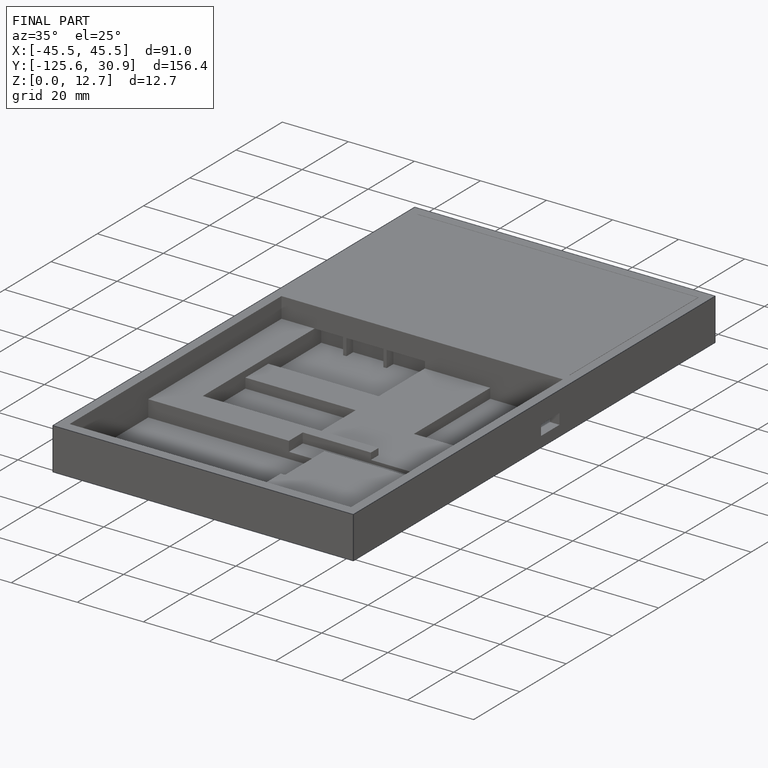
[diagram: finished part — iso view with bounding-box wireframe]
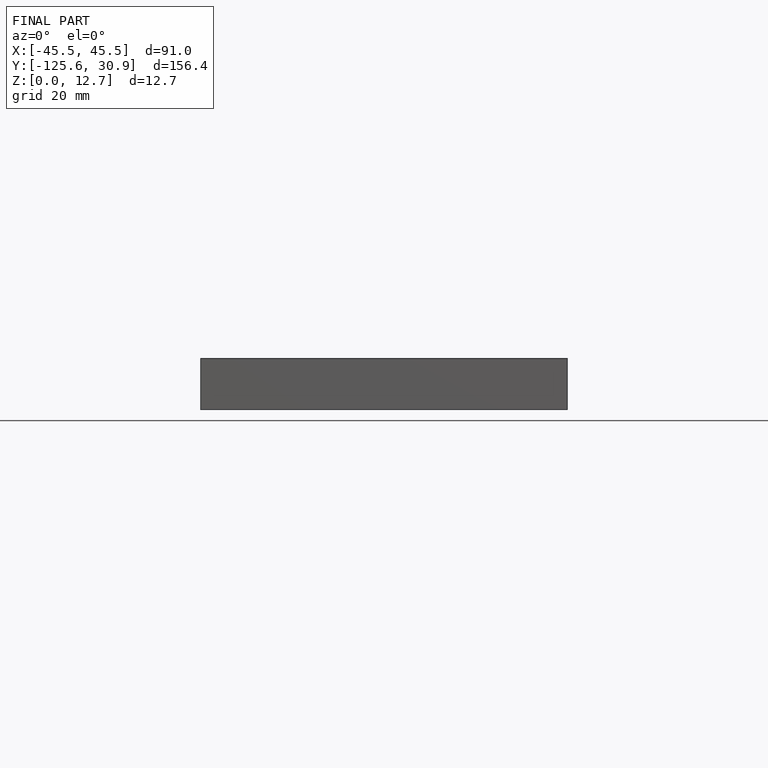
[diagram: finished part — front view with bounding-box wireframe]
